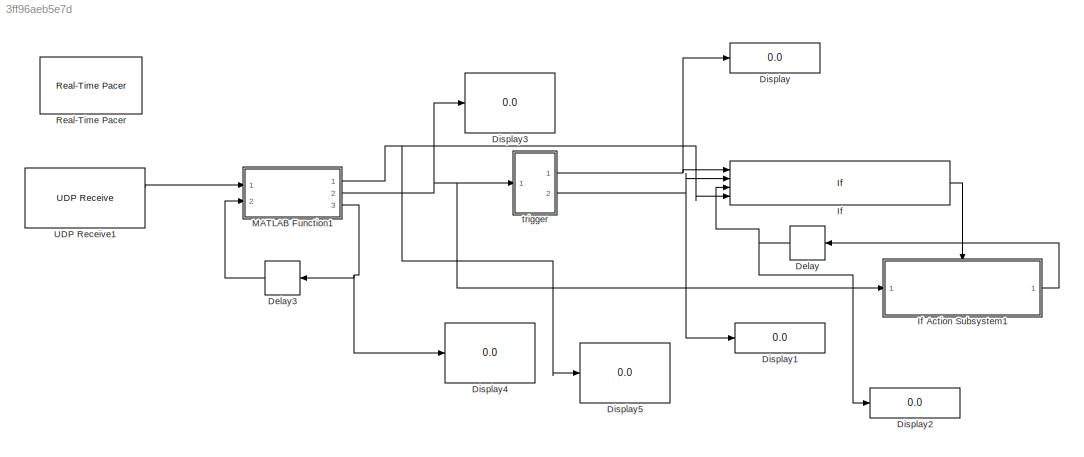
MODEL slx_3ff96aeb5e7d
KIND model
CONFIG AbsTol = auto
CONFIG EnableMultiTasking = off
CONFIG FixedStep = auto
CONFIG MaxStep = auto
CONFIG MinStep = auto
CONFIG RelTol = 1e-3
CONFIG SampleTimeConstraint = Unconstrained
CONFIG SolverName = VariableStepAuto
CONFIG StartTime = 0.0
CONFIG StopTime = 10.0
BLOCK [Delay] Delay
  DelayLength = 1
  InitialCondition = 0
  InputPortMap = u0
  Ports = [1, 1]
BLOCK [Delay] Delay3
  DelayLength = 1
  InitialCondition = 0
  InputPortMap = u0
  Ports = [1, 1]
BLOCK [Display] Display
  Decimation = 1
  Ports = [1]
BLOCK [Display] Display1
  Decimation = 1
  Ports = [1]
BLOCK [Display] Display2
  Decimation = 1
  Ports = [1]
BLOCK [Display] Display3
  Decimation = 1
  Ports = [1]
BLOCK [Display] Display4
  Decimation = 1
  Ports = [1]
BLOCK [Display] Display5
  Decimation = 1
  Ports = [1]
BLOCK [If] If
  IfExpression = (u1 == 0 & u2 ~=0& u4~=0) | (u3 > 1& u4~=0)
  NumInputs = 4
  Ports = [4, 1]
  ShowElse = off
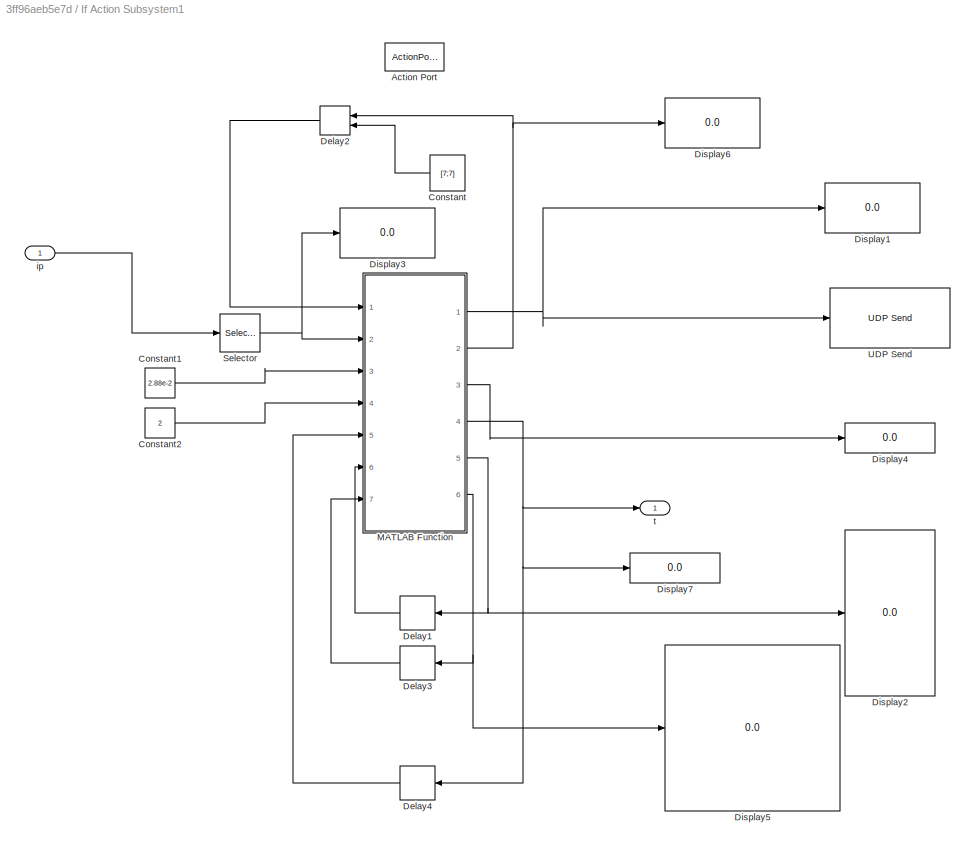
BLOCK [SubSystem] If Action Subsystem1
  Ports = [1, 1, 0, 0, 0, 0, 0, 1]
  RequestExecContextInheritance = off
  TreatAsAtomicUnit = on
BLOCK [ActionPort] If Action Subsystem1/Action Port
  ActionPortLabel = if((u1 == 0 & u2 ~=0& u4~=0) | (u3 > 1& u4~=0))
BLOCK [Constant] If Action Subsystem1/Constant
  Value = [7;7]
  VectorParams1D = off
BLOCK [Constant] If Action Subsystem1/Constant1
  Value = 2.88e-2
BLOCK [Constant] If Action Subsystem1/Constant2
  Value = 2
BLOCK [Delay] If Action Subsystem1/Delay1
  DelayLength = 1
  InitialCondition = zeros(1,9)
  InputPortMap = u0
  Ports = [1, 1]
BLOCK [Delay] If Action Subsystem1/Delay2
  DelayLength = 1
  InitialCondition = 0
  InitialConditionSource = Input port
  InputPortMap = u0,p4
  Ports = [2, 1]
BLOCK [Delay] If Action Subsystem1/Delay3
  DelayLength = 1
  InitialCondition = zeros(8,2)
  InputPortMap = u0
  Ports = [1, 1]
BLOCK [Delay] If Action Subsystem1/Delay4
  DelayLength = 1
  InitialCondition = 0
  InputPortMap = u0
  Ports = [1, 1]
BLOCK [Display] If Action Subsystem1/Display1
  Decimation = 1
  Ports = [1]
BLOCK [Display] If Action Subsystem1/Display2
  Decimation = 1
  Ports = [1]
BLOCK [Display] If Action Subsystem1/Display3
  Decimation = 1
  Ports = [1]
BLOCK [Display] If Action Subsystem1/Display4
  Decimation = 1
  Ports = [1]
BLOCK [Display] If Action Subsystem1/Display5
  Decimation = 1
  Ports = [1]
BLOCK [Display] If Action Subsystem1/Display6
  Decimation = 1
  Ports = [1]
BLOCK [Display] If Action Subsystem1/Display7
  Decimation = 1
  Ports = [1]
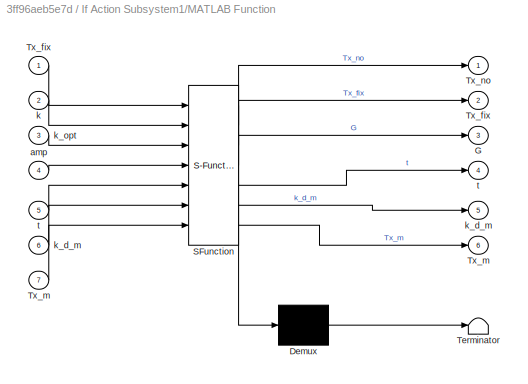
BLOCK [SubSystem] If Action Subsystem1/MATLAB Function
  ErrorFcn = Stateflow.Translate.translate
  PermitHierarchicalResolution = ExplicitOnly
  Ports = [7, 6]
  RequestExecContextInheritance = off
  SFBlockType = MATLAB Function
  TreatAsAtomicUnit = on
BLOCK [Demux] If Action Subsystem1/MATLAB Function/ Demux 
  Outputs = 1
  Ports = [1, 1]
BLOCK [S-Function] If Action Subsystem1/MATLAB Function/ SFunction 
  EnableBusSupport = on
  FunctionName = sf_sfun
  PortCounts = [7 7]
  Ports = [7, 7]
  SFcnIsStateOwnerBlock = off
  SFunctionDeploymentMode = off
  Tag = Stateflow S-Function 8
BLOCK [Terminator] If Action Subsystem1/MATLAB Function/ Terminator 
BLOCK [Outport] If Action Subsystem1/MATLAB Function/G
  Port = 3
BLOCK [Outport] If Action Subsystem1/MATLAB Function/Tx_fix
  Port = 2
BLOCK [Inport] If Action Subsystem1/MATLAB Function/Tx_fix 
BLOCK [Outport] If Action Subsystem1/MATLAB Function/Tx_m
  Port = 6
BLOCK [Inport] If Action Subsystem1/MATLAB Function/Tx_m 
  Port = 7
BLOCK [Outport] If Action Subsystem1/MATLAB Function/Tx_no
BLOCK [Inport] If Action Subsystem1/MATLAB Function/amp
  Port = 4
BLOCK [Inport] If Action Subsystem1/MATLAB Function/k
  Port = 2
BLOCK [Outport] If Action Subsystem1/MATLAB Function/k_d_m
  Port = 5
BLOCK [Inport] If Action Subsystem1/MATLAB Function/k_d_m 
  Port = 6
BLOCK [Inport] If Action Subsystem1/MATLAB Function/k_opt
  Port = 3
BLOCK [Outport] If Action Subsystem1/MATLAB Function/t
  Port = 4
BLOCK [Inport] If Action Subsystem1/MATLAB Function/t 
  Port = 5
BLOCK [Selector] If Action Subsystem1/Selector
  IndexOptions = Index vector (dialog)
  Indices = 1
  InputPortWidth = 2
  OutputSizes = 1
  Ports = [1, 1]
BLOCK [Reference] If Action Subsystem1/UDP Send  REF=raspberrypiNetworklib/UDP Send
  Ports = [1]
  SourceBlock = raspberrypiNetworklib/UDP Send
  SourceProductBaseCode = RASPPI
  SourceType = UDP Send
BLOCK [Inport] If Action Subsystem1/ip
BLOCK [Outport] If Action Subsystem1/t
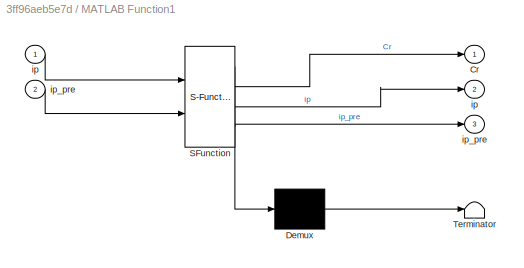
BLOCK [SubSystem] MATLAB Function1
  ErrorFcn = Stateflow.Translate.translate
  PermitHierarchicalResolution = ExplicitOnly
  Ports = [2, 3]
  RequestExecContextInheritance = off
  SFBlockType = MATLAB Function
  TreatAsAtomicUnit = on
BLOCK [Demux] MATLAB Function1/ Demux 
  Outputs = 1
  Ports = [1, 1]
BLOCK [S-Function] MATLAB Function1/ SFunction 
  EnableBusSupport = on
  FunctionName = sf_sfun
  PortCounts = [2 4]
  Ports = [2, 4]
  SFcnIsStateOwnerBlock = off
  SFunctionDeploymentMode = off
  Tag = Stateflow S-Function 1
BLOCK [Terminator] MATLAB Function1/ Terminator 
BLOCK [Outport] MATLAB Function1/Cr
BLOCK [Outport] MATLAB Function1/ip
  Port = 2
BLOCK [Inport] MATLAB Function1/ip 
BLOCK [Outport] MATLAB Function1/ip_pre
  Port = 3
BLOCK [Inport] MATLAB Function1/ip_pre 
  Port = 2
BLOCK [Reference] Real-Time Pacer  REF=realtime_pacer_lib/Real-Time Pacer
  Ports = []
  SourceBlock = realtime_pacer_lib/Real-Time Pacer
  SourceProductName = Real-Time Pacer
  SourceType = RealTime_Pacer
BLOCK [Reference] UDP Receive1  REF=raspberrypiNetworklib/UDP Receive
  Ports = [0, 2]
  SourceBlock = raspberrypiNetworklib/UDP Receive
  SourceProductBaseCode = RASPPI
  SourceType = UDP Receive
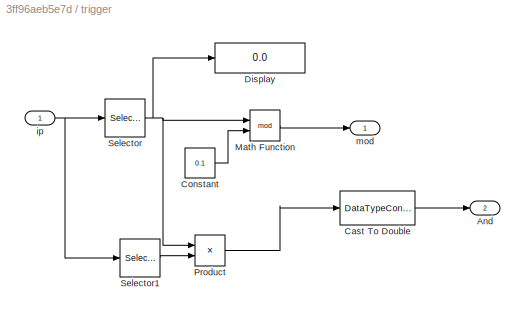
BLOCK [SubSystem] trigger
  Ports = [1, 2]
  RequestExecContextInheritance = off
BLOCK [Outport] trigger/And
  Port = 2
BLOCK [DataTypeConversion] trigger/Cast To Double
  OutDataTypeStr = double
  RndMeth = Floor
  SaturateOnIntegerOverflow = off
BLOCK [Constant] trigger/Constant
  Value = 0.1
BLOCK [Display] trigger/Display
  Decimation = 1
  Ports = [1]
BLOCK [Math] trigger/Math Function
  Operator = mod
  Ports = [2, 1]
BLOCK [Product] trigger/Product
  Ports = [2, 1]
BLOCK [Selector] trigger/Selector
  IndexOptions = Index vector (dialog)
  Indices = 2
  InputPortWidth = 2
  OutputSizes = 1
  Ports = [1, 1]
BLOCK [Selector] trigger/Selector1
  IndexOptions = Index vector (dialog)
  Indices = 1
  InputPortWidth = 2
  OutputSizes = 1
  Ports = [1, 1]
BLOCK [Inport] trigger/ip
BLOCK [Outport] trigger/mod
LINE Delay3:1 -> MATLAB Function1:2
NET Delay:1 -> Display2:1, If:3
LINE If Action Subsystem1/Constant1:1 -> If Action Subsystem1/MATLAB Function:3
LINE If Action Subsystem1/Constant2:1 -> If Action Subsystem1/MATLAB Function:4
LINE If Action Subsystem1/Constant:1 -> If Action Subsystem1/Delay2:2
LINE If Action Subsystem1/Delay1:1 -> If Action Subsystem1/MATLAB Function:6
LINE If Action Subsystem1/Delay2:1 -> If Action Subsystem1/MATLAB Function:1
LINE If Action Subsystem1/Delay3:1 -> If Action Subsystem1/MATLAB Function:7
LINE If Action Subsystem1/Delay4:1 -> If Action Subsystem1/MATLAB Function:5
NET If Action Subsystem1/MATLAB Function:1 -> If Action Subsystem1/Display1:1, If Action Subsystem1/UDP Send:1
NET If Action Subsystem1/MATLAB Function:2 -> If Action Subsystem1/Delay2:1, If Action Subsystem1/Display6:1
LINE If Action Subsystem1/MATLAB Function:3 -> If Action Subsystem1/Display4:1
NET If Action Subsystem1/MATLAB Function:4 -> If Action Subsystem1/Delay4:1, If Action Subsystem1/Display7:1, If Action Subsystem1/t:1
NET If Action Subsystem1/MATLAB Function:5 -> If Action Subsystem1/Delay1:1, If Action Subsystem1/Display2:1
NET If Action Subsystem1/MATLAB Function:6 -> If Action Subsystem1/Delay3:1, If Action Subsystem1/Display5:1
NET If Action Subsystem1/Selector:1 -> If Action Subsystem1/Display3:1, If Action Subsystem1/MATLAB Function:2
LINE If Action Subsystem1/ip:1 -> If Action Subsystem1/Selector:1
LINE If Action Subsystem1:1 -> Delay:1
LINE If:1 -> If Action Subsystem1:ifaction
NET MATLAB Function1:1 -> Display5:1, If:4
NET MATLAB Function1:2 -> Display3:1, If Action Subsystem1:1, trigger:1
NET MATLAB Function1:3 -> Delay3:1, Display4:1
LINE UDP Receive1:1 -> MATLAB Function1:1
LINE trigger/Cast To Double:1 -> trigger/And:1
LINE trigger/Constant:1 -> trigger/Math Function:2
LINE trigger/Math Function:1 -> trigger/mod:1
LINE trigger/Product:1 -> trigger/Cast To Double:1
LINE trigger/Selector1:1 -> trigger/Product:2
NET trigger/Selector:1 -> trigger/Display:1, trigger/Math Function:1, trigger/Product:1
NET trigger/ip:1 -> trigger/Selector1:1, trigger/Selector:1
NET trigger:1 -> Display:1, If:1
NET trigger:2 -> Display1:1, If:2
note: NET lines group one-source signal fan-out (src -> all destinations, sorted); 1:1 wires keep LINE
CHART MATLAB Function1 states=1 transitions=1
  STATE_LABEL 'eML_blk_kernel()'
  STATE_LABEL 'SCRIPT:\nfunction [Cr,ip, ip_pre] = fcn(ip, ip_pre)\n\nip2 = ip(2);\n\nif ip2 == ip_pre\n    Cr = 0;\nelse\n    ip_pre = ip2;\n    Cr = 1;\n\nend\n\n\n\n'
CHART If Action
Subsystem1/MATLAB Function states=1 transitions=1
  STATE_LABEL 'eML_blk_kernel()'
  STATE_LABEL "SCRIPT:\nfunction [Tx_no,Tx_fix,G,t,k_d_m,Tx_m] = Controller(Tx_fix,k,k_opt,amp,t,k_d_m,Tx_m)\n\nk_diff = abs(k_opt-k)/k_opt;\nG = round(amp*k_d_m(1));\n\nif t ~=0\n    \n    k_d_m (t-1) = k_diff;\n  \nelse\n\n    t = t+1;\n\nend\n\n\nif t < 10\n    if t < 9\n\n        dir_att = [-1,-1; -1,0; 0,-1; 1,1; 1,0; 0,1; 1,-1; -1,1];\n        \n        \n        Tx_no =G*dir_att(t,:)'+Tx_fix;\n    \n        Tx_m (t,:) = Tx_no;\n  ...<+300ch>"
CHART  states=0 transitions=0
CHART  states=0 transitions=0
